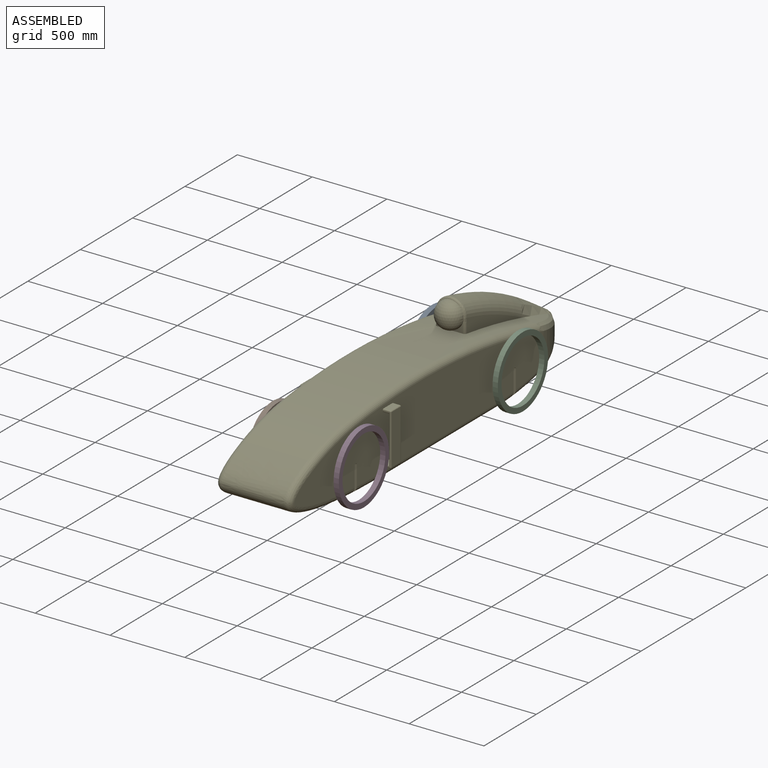
[diagram: assembled view]
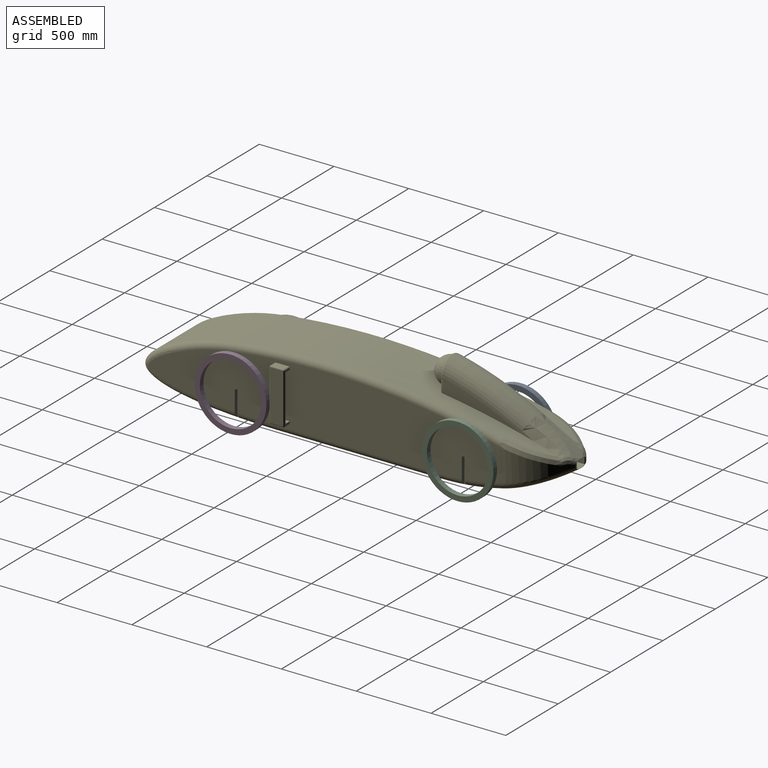
[diagram: assembled view, second angle]
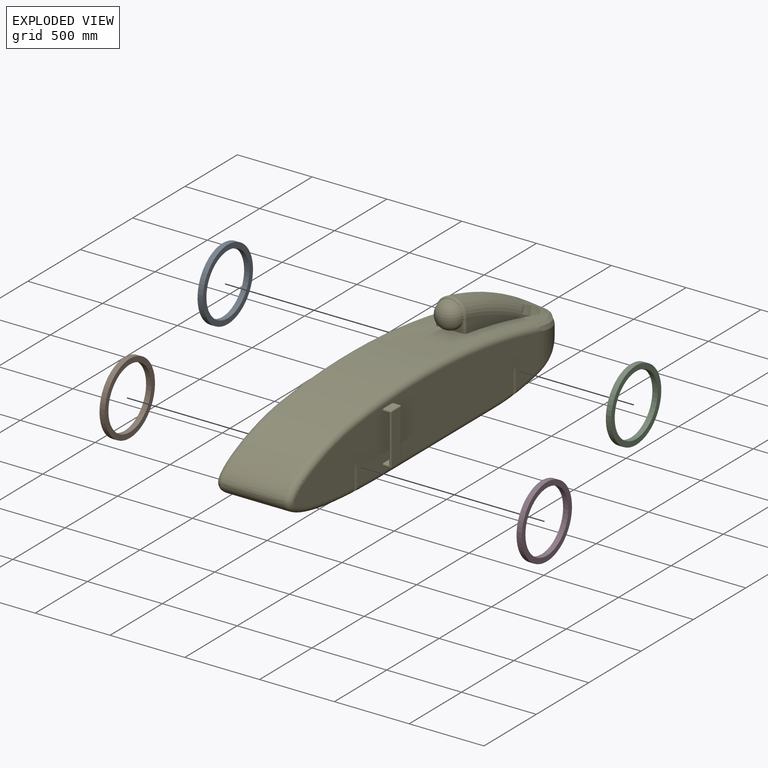
[diagram: exploded view]
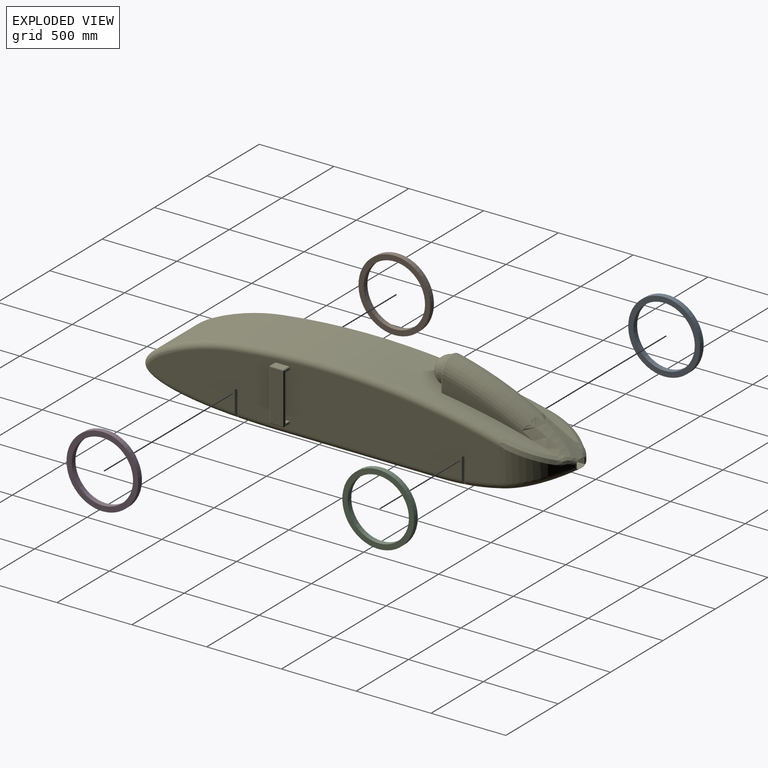
[diagram: exploded view, second angle]
ASSEMBLY  parts=5 mates=4
PART A: 4 faces, bbox 35x480x480 mm
  f0: cylinder r=205mm len=410mm, axis (-1,0,0), area 45081.9mm2, adj f2,f3
  f1: cylinder r=240mm len=480mm, axis (-1,0,0), area 52778.8mm2, adj f2,f3
  f2: plane 480x480mm, normal (1,0,0), area 48930.3mm2, adj f0,f1
  f3: plane 480x480mm, normal (-1,0,0), area 48930.3mm2, adj f0,f1
PART B: same geometry as A
PART C: same geometry as A
PART D: same geometry as A
PART E: 125 faces, bbox 611.7x2790.2x675.7 mm
  f0: cylinder r=4818.85mm len=2065.53mm, axis (-1,0,0), area 695589.8mm2, adj f3,f11,f44,f75,f77,f80,f84,f85
  f1: cylinder r=1691.26mm len=771.88mm, axis (-1,0,0), area 289462.9mm2, adj f10,f79,f86,f89,f100,f103
  f2: cylinder r=2192.05mm len=285.78mm, axis (-1,0,0), area 9905mm2, adj f75,f77,f78,f97,f112
  f3: plane 524.24x199.55mm, normal (1,0,0), area 29601.8mm2, adj f0,f76,f80,f81
  f4: plane 2345.29x414.51mm, normal (-1,0,0), area 799421mm2, adj f41,f42,f43,f46,f47,f48,f50,f51
  f5: plane 47.5x5mm, normal (0,-1,0), area 237.5mm2, adj f8,f35,f38,f39
  f6: plane 47.5x5mm, normal (0,-1,0), area 237.5mm2, adj f8,f32,f38,f40
  f7: plane 335x47.5mm, normal (0,1,0), area 3512.5mm2, adj f8,f24,f25,f26,f27,f28,f29
  f8: plane 2345.29x414.51mm, normal (1,0,0), area 799421mm2, adj f5,f6,f7,f14,f15,f16,f18,f19
  f9: extruded ~917.77x420mm, area 531714.7mm2, adj f10,f85,f90,f102
  f10: plane 1067.01x420mm, normal (0,0,-1), area 448142.8mm2, adj f1,f9,f87,f101
  f11: plane 170x65.42mm, normal (0,-1,0), area 3624.9mm2, adj f0,f12,f80,f84
  f12: sphere r=90mm, area 50893.8mm2, adj f11,f81,f82,f83
  f13: plane 180.38x20mm, normal (1,0,0), area 3546.1mm2, adj f14,f15,f16,f86
  f14: plane 171.12x25.74mm, normal (0,1,0), area 4002.5mm2, adj f8,f13,f16,f86
  f15: plane 169.31x25.84mm, normal (0,-1,0), area 3954.5mm2, adj f8,f13,f16,f86
  f16: cylinder r=10mm len=25mm, axis (1,0,0), area 785.4mm2, adj f8,f13,f14,f15
  f17: plane 180.98x20mm, normal (1,0,0), area 3567.2mm2, adj f18,f19,f20,f90
  f18: plane 171.69x26.68mm, normal (0,1,0), area 3993.8mm2, adj f8,f17,f20,f90
  f19: plane 172.72x26.74mm, normal (0,-1,0), area 4018.3mm2, adj f8,f17,f20,f90
  f20: cylinder r=10mm len=25mm, axis (1,0,0), area 785.4mm2, adj f8,f17,f18,f19
  f21: plane 85x47.5mm, normal (0,0,1), area 4037.5mm2, adj f8,f27,f32,f33
  f22: plane 85x47.5mm, normal (0,0,-1), area 4037.5mm2, adj f8,f29,f34,f35
  f23: plane 335x85mm, normal (1,0,0), area 28475mm2, adj f28,f33,f34,f38
  f24: plane 92.5x40mm, normal (0,0,1), area 3700mm2, adj f7,f8,f25,f39
  f25: plane 310x92.5mm, normal (-1,0,0), area 28675mm2, adj f7,f24,f26,f38
  f26: plane 92.5x40mm, normal (0,0,-1), area 3700mm2, adj f7,f8,f25,f40
  f27: cylinder r=7.5mm len=47.5mm, axis (-1,0,0), area 559.6mm2, adj f7,f8,f21,f30
  f28: cylinder r=7.5mm len=335mm, axis (0,0,-1), area 3946.6mm2, adj f7,f23,f30,f31
  f29: cylinder r=7.5mm len=47.5mm, axis (1,0,0), area 559.6mm2, adj f7,f8,f22,f31
  f30: sphere r=7.5mm, area 56.2mm2, adj f27,f28,f33
  f31: sphere r=7.5mm, area 56.2mm2, adj f28,f29,f34
  f32: cylinder r=7.5mm len=47.5mm, axis (1,0,0), area 559.6mm2, adj f6,f8,f21,f36
  f33: cylinder r=7.5mm len=85mm, axis (0,1,0), area 1001.4mm2, adj f21,f23,f30,f36
  f34: cylinder r=7.5mm len=85mm, axis (0,-1,0), area 1001.4mm2, adj f22,f23,f31,f37
  f35: cylinder r=7.5mm len=47.5mm, axis (-1,0,0), area 559.6mm2, adj f5,f8,f22,f37
  f36: sphere r=7.5mm, area 88.4mm2, adj f32,f33,f38
  f37: sphere r=7.5mm, area 88.4mm2, adj f34,f35,f38
  f38: cylinder r=7.5mm len=335mm, axis (0,0,1), area 7687.1mm2, adj f5,f6,f23,f25,f36,f37,f39,f40
  f39: cylinder r=7.5mm len=47.5mm, axis (1,0,0), area 515.4mm2, adj f5,f8,f24,f38
  f40: cylinder r=7.5mm len=47.5mm, axis (-1,0,0), area 515.4mm2, adj f6,f8,f26,f38
  f41: plane 47.5x5mm, normal (0,-1,0), area 237.5mm2, adj f4,f67,f70,f71
  f42: plane 47.5x5mm, normal (0,-1,0), area 237.5mm2, adj f4,f64,f70,f72
  f43: plane 335x47.5mm, normal (0,1,0), area 3512.5mm2, adj f4,f56,f57,f58,f59,f60,f61
  f44: plane 524.24x199.55mm, normal (-1,0,0), area 29601.8mm2, adj f0,f76,f83,f84
  f45: plane 180.38x20mm, normal (-1,0,0), area 3546.1mm2, adj f46,f47,f48,f100
  f46: plane 171.12x25.74mm, normal (0,1,0), area 4002.5mm2, adj f4,f45,f48,f100
  f47: plane 169.31x25.84mm, normal (0,-1,0), area 3954.5mm2, adj f4,f45,f48,f100
  f48: cylinder r=10mm len=25mm, axis (-1,0,0), area 785.4mm2, adj f4,f45,f46,f47
  f49: plane 180.98x20mm, normal (-1,0,0), area 3567.2mm2, adj f50,f51,f52,f102
  f50: plane 171.75x26.74mm, normal (0,1,0), area 3993.8mm2, adj f4,f49,f52,f102
  f51: plane 172.66x26.68mm, normal (0,-1,0), area 4018.3mm2, adj f4,f49,f52,f102
  f52: cylinder r=10mm len=25mm, axis (-1,0,0), area 785.4mm2, adj f4,f49,f50,f51
  f53: plane 85x47.5mm, normal (0,0,1), area 4037.5mm2, adj f4,f59,f64,f65
  f54: plane 85x47.5mm, normal (0,0,-1), area 4037.5mm2, adj f4,f61,f66,f67
  f55: plane 335x85mm, normal (-1,0,0), area 28475mm2, adj f60,f65,f66,f70
  f56: plane 92.5x40mm, normal (0,0,1), area 3700mm2, adj f4,f43,f57,f71
  f57: plane 310x92.5mm, normal (1,0,0), area 28675mm2, adj f43,f56,f58,f70
  f58: plane 92.5x40mm, normal (0,0,-1), area 3700mm2, adj f4,f43,f57,f72
  f59: cylinder r=7.5mm len=47.5mm, axis (1,0,0), area 559.6mm2, adj f4,f43,f53,f62
  f60: cylinder r=7.5mm len=335mm, axis (0,0,-1), area 3946.6mm2, adj f43,f55,f62,f63
  f61: cylinder r=7.5mm len=47.5mm, axis (-1,0,0), area 559.6mm2, adj f4,f43,f54,f63
  f62: sphere r=7.5mm, area 88.4mm2, adj f59,f60,f65
  f63: sphere r=7.5mm, area 88.4mm2, adj f60,f61,f66
  f64: cylinder r=7.5mm len=47.5mm, axis (-1,0,0), area 559.6mm2, adj f4,f42,f53,f68
  f65: cylinder r=7.5mm len=85mm, axis (0,1,0), area 1001.4mm2, adj f53,f55,f62,f68
  f66: cylinder r=7.5mm len=85mm, axis (0,-1,0), area 1001.4mm2, adj f54,f55,f63,f69
  f67: cylinder r=7.5mm len=47.5mm, axis (1,0,0), area 559.6mm2, adj f4,f41,f54,f69
  f68: sphere r=7.5mm, area 56.2mm2, adj f64,f65,f70
  f69: sphere r=7.5mm, area 56.2mm2, adj f66,f67,f70
  f70: cylinder r=7.5mm len=335mm, axis (0,0,1), area 7687.1mm2, adj f41,f42,f55,f57,f68,f69,f71,f72
  f71: cylinder r=7.5mm len=47.5mm, axis (-1,0,0), area 515.4mm2, adj f4,f41,f56,f70
  f72: cylinder r=7.5mm len=47.5mm, axis (1,0,0), area 515.4mm2, adj f4,f42,f58,f70
  f73: cylinder r=447.3mm len=365.4mm, axis (0,0,-1), area 49097.6mm2, adj f4,f103,f107,f111,f112,f113
  f74: cylinder r=447.3mm len=365.4mm, axis (0,0,-1), area 49097.6mm2, adj f8,f89,f92,f97,f98,f99
  f75: bspline ~310.99x168.49mm, area 33769.6mm2, adj f0,f2,f76,f98,f99
  f76: torus R=2092.05mm, axis (1,0,0), area 182132.3mm2, adj f3,f44,f75,f77,f82
  f77: bspline ~310.99x168.49mm, area 33769.6mm2, adj f0,f2,f76,f111,f113
  f78: cylinder r=2mm len=29.96mm, axis (-1,0,0), area 54.9mm2, adj f2,f94,f110,f114
  f79: cylinder r=2mm len=10.46mm, axis (-1,0,0), area 22.9mm2, adj f1,f88,f104,f118
  f80: cylinder r=15mm len=67.5mm, axis (0,0,1), area 1565.9mm2, adj f0,f3,f11,f81
  f81: bspline ~40.75x17.53mm, area 583.8mm2, adj f3,f12,f80,f82
  f82: bspline ~200x102.04mm, area 6521.7mm2, adj f12,f76,f81,f83
  f83: bspline ~39.32x17.01mm, area 584.4mm2, adj f12,f44,f82,f84
  f84: cylinder r=15mm len=67.5mm, axis (0,0,1), area 1565.9mm2, adj f0,f11,f44,f83
  f85: cylinder r=1500mm len=420mm, axis (-1,0,0), area 167278.7mm2, adj f0,f9,f93,f106
  f86: torus R=1651.26mm, axis (1,0,0), area 24837.8mm2, adj f1,f8,f13,f14,f15,f87,f89
  f87: cylinder r=40mm len=1067.01mm, axis (0,-1,0), area 67042mm2, adj f8,f10,f86,f90
  f88: bspline ~41.39x10.93mm, area 60.5mm2, adj f79,f89,f91,f117
  f89: bspline ~409.25x265.95mm, area 25220.3mm2, adj f1,f74,f86,f88,f91
  f90: bspline ~1449.01x361.28mm, area 76261.3mm2, adj f8,f9,f17,f18,f19,f87,f93
  f91: bspline ~23.08x17.25mm, area 20.3mm2, adj f88,f89,f92,f117,f123
  f92: cylinder r=40mm len=38.82mm, axis (0,0,-1), area 507.6mm2, adj f74,f91,f95,f123
  f93: torus R=1460mm, axis (1,0,0), area 24782.3mm2, adj f8,f85,f90,f96
  f94: bspline ~29.16x7.48mm, area 36.4mm2, adj f78,f95,f97,f115
  f95: bspline ~23.08x15.19mm, area 18mm2, adj f92,f94,f97,f115,f123
  f96: torus R=4778.85mm, axis (1,0,0), area 112639.4mm2, adj f0,f8,f93,f98
  f97: bspline ~86.86x64.68mm, area 1183.9mm2, adj f2,f74,f94,f95,f99
  f98: bspline ~363.82x176.42mm, area 20458.2mm2, adj f0,f74,f75,f96,f99
  f99: bspline ~75.88x68.1mm, area 2713.3mm2, adj f74,f75,f97,f98
  f100: torus R=1651.26mm, axis (-1,0,0), area 24837.8mm2, adj f1,f4,f45,f46,f47,f101,f103
  f101: cylinder r=40mm len=1067.01mm, axis (0,-1,0), area 67042mm2, adj f4,f10,f100,f102
  f102: bspline ~1449.01x361.28mm, area 76261.3mm2, adj f4,f9,f49,f50,f51,f101,f106
  f103: bspline ~427.59x265.99mm, area 25220.3mm2, adj f1,f73,f100,f104,f105
  f104: bspline ~41.34x10.93mm, area 60.5mm2, adj f79,f103,f105,f119
  f105: bspline ~23.08x17.25mm, area 20.3mm2, adj f103,f104,f107,f119,f124
  f106: torus R=1460mm, axis (-1,0,0), area 24782.3mm2, adj f4,f85,f102,f108
  f107: cylinder r=40mm len=38.82mm, axis (0,0,-1), area 507.6mm2, adj f73,f105,f109,f124
  f108: torus R=4778.85mm, axis (-1,0,0), area 112639.4mm2, adj f0,f4,f106,f111
  f109: bspline ~23.08x15.19mm, area 18mm2, adj f107,f110,f112,f121,f124
  f110: bspline ~29.34x7.61mm, area 36.4mm2, adj f78,f109,f112,f121
  f111: bspline ~363.82x176.42mm, area 20458.2mm2, adj f0,f73,f77,f108,f113
  f112: bspline ~86.86x64.68mm, area 1183.9mm2, adj f2,f73,f109,f110,f113
  f113: bspline ~75.88x68.1mm, area 2713.3mm2, adj f73,f77,f111,f112
  f114: plane 600x29.96mm, normal (0,0,-1), area 17972.9mm2, adj f78,f115,f121,f122
  f115: extruded ~600x28.33mm, area 14034.6mm2, adj f94,f95,f114,f116,f122,f123
  f116: plane 594.64x45.35mm, normal (-1,0,0), area 26968.3mm2, adj f115,f117,f122,f123
  f117: extruded ~600x38.08mm, area 20176.3mm2, adj f88,f91,f116,f118,f122,f123
  f118: plane 600x10.46mm, normal (0,0,1), area 6275.3mm2, adj f79,f117,f119,f122
  f119: extruded ~600x38.08mm, area 20175.4mm2, adj f104,f105,f118,f120,f122,f124
  f120: plane 594.64x45.35mm, normal (1,0,0), area 26968.3mm2, adj f119,f121,f122,f124
  f121: extruded ~600x28.33mm, area 14034.9mm2, adj f109,f110,f114,f120,f122,f124
  f122: plane 75.67x57.69mm, normal (0,1,0), area 4112.7mm2, adj f114,f115,f116,f117,f118,f119,f120,f121
  f123: cylinder r=5mm len=45.35mm, axis (0,0,-1), area 367.9mm2, adj f91,f92,f95,f115,f116,f117
  f124: cylinder r=5mm len=45.35mm, axis (0,0,-1), area 367.9mm2, adj f105,f107,f109,f119,f120,f121
PLACE A t=(-867.51,596.6,78.93)mm
PLACE B t=(-867.51,-921.4,78.93)mm
PLACE C t=(-292.51,596.6,78.93)mm
PLACE D t=(-292.51,-921.4,78.93)mm
PLACE E t=(-562.51,469.35,-46.93)mm fixed
MATE fastened A.f0 <-> E.f16  axis (1,0,0) through (-832.51,596.6,78.93)mm
MATE fastened C.f0 <-> E.f16  axis (-1,0,0) through (-292.51,596.6,78.93)mm
MATE fastened B.f0 <-> E.f20  axis (1,0,0) through (-832.51,-921.4,78.93)mm
MATE fastened D.f0 <-> E.f20  axis (-1,0,0) through (-292.51,-921.4,78.93)mm
